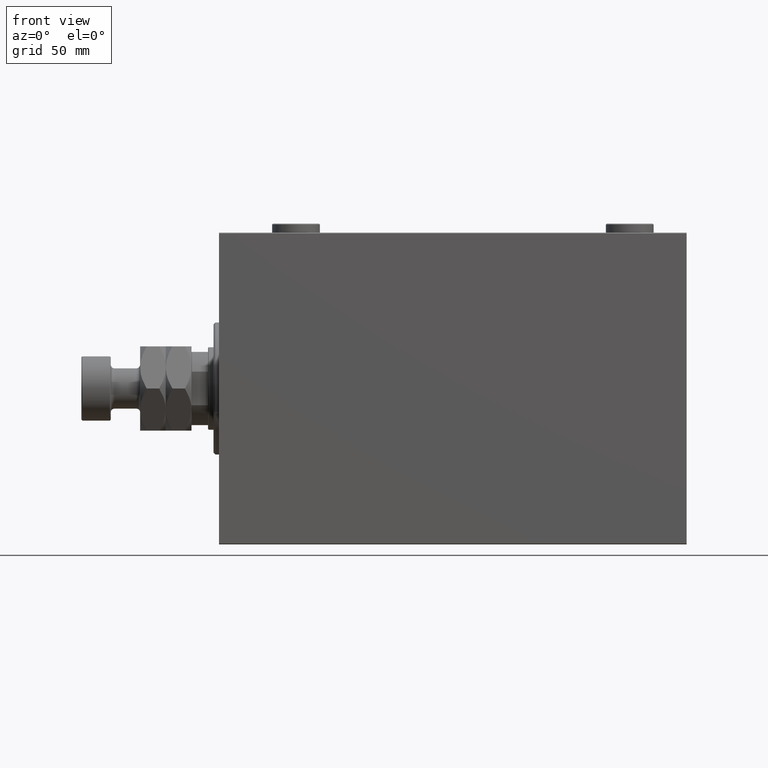
[diagram: clean part render]
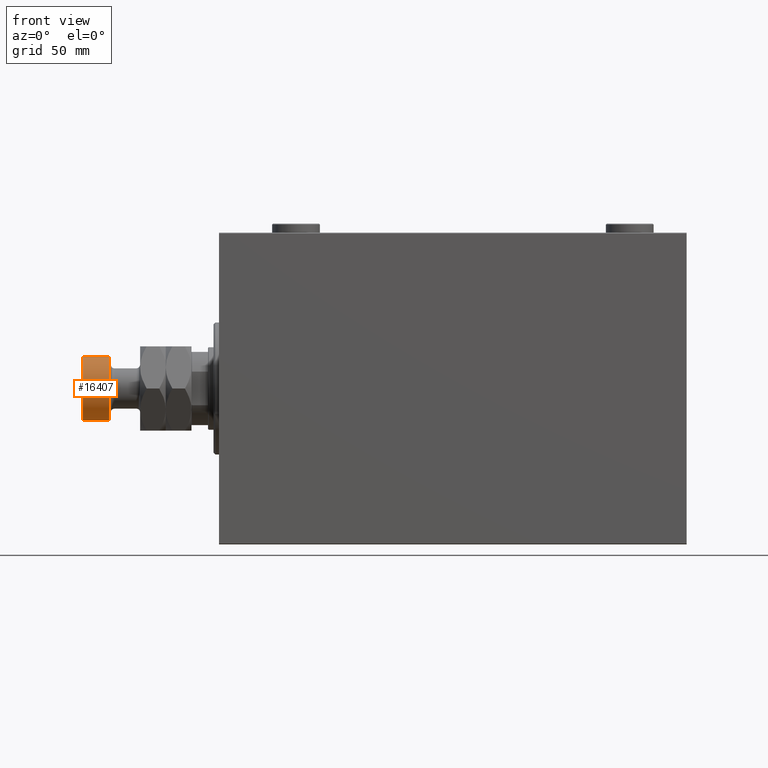
[diagram: same view with one face highlighted and labeled with its STEP entity id]
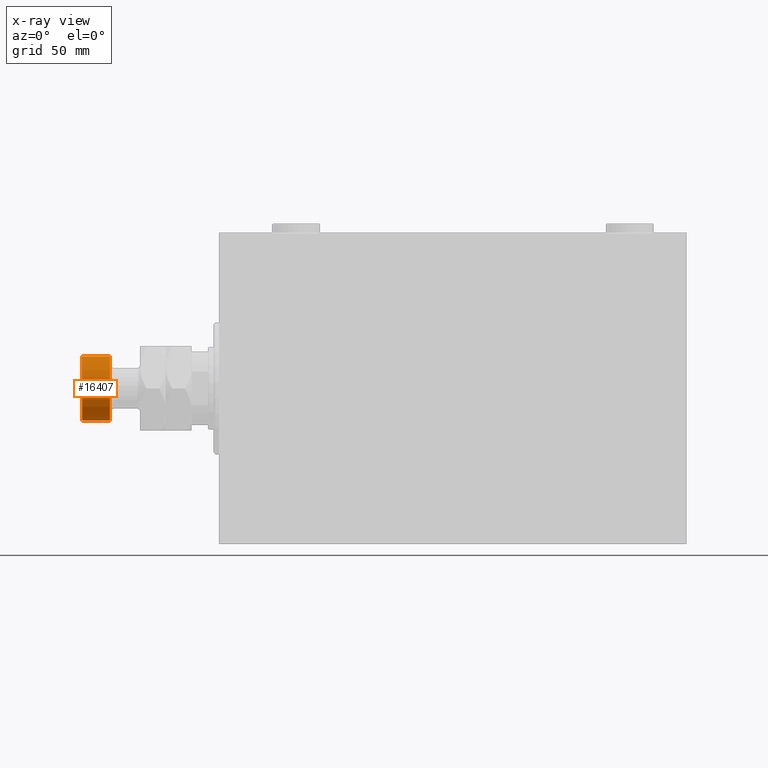
[diagram: x-ray of the same camera — body ghosted, the highlighted face saturated]
A machine part, front view. The second image highlights one B-rep face of the part: STEP entity #16407.
The next image is the same camera in x-ray: the body ghosted, the highlighted face saturated — about 0% of this face is hidden behind the body in this view.
In plain terms, the highlighted cylindrical surface (edge-blend (fillet) strip) has radius 17.5 mm, axis along (1, -0, -0).
Its self-contained STEP definition (entity closure, byte-faithful):
#992 = DIRECTION ( 'NONE',  ( -0.000000000000000000, -0.000000000000000000, 1.000000000000000000 ) ) ;
#5082 = AXIS2_PLACEMENT_3D ( 'NONE', #23829, #31449, #23356 ) ;
#5675 = CARTESIAN_POINT ( 'NONE',  ( -17.50000000000000355, 0.000000000000000000, 60.00000000000000000 ) ) ;
#6267 = CARTESIAN_POINT ( 'NONE',  ( -17.50000000000000355, 0.000000000000000000, 59.50000000000000000 ) ) ;
#8144 = DIRECTION ( 'NONE',  ( 1.000000000000000000, 0.000000000000000000, 0.000000000000000000 ) ) ;
#8763 = CARTESIAN_POINT ( 'NONE',  ( 17.50000000000000355, 2.143131898507868643E-15, 60.00000000000000000 ) ) ;
#9318 = VERTEX_POINT ( 'NONE', #6267 ) ;
#9461 = DIRECTION ( 'NONE',  ( -0.000000000000000000, -0.000000000000000000, -1.000000000000000000 ) ) ;
#9856 = CARTESIAN_POINT ( 'NONE',  ( 0.000000000000000000, 0.000000000000000000, 60.00000000000000000 ) ) ;
#11095 = EDGE_CURVE ( 'NONE', #18808, #46979, #44979, .T. ) ;
#13926 = CARTESIAN_POINT ( 'NONE',  ( 17.50000000000000355, 2.143131898507868643E-15, 44.50000000000000000 ) ) ;
#15309 = ORIENTED_EDGE ( 'NONE', *, *, #34501, .T. ) ;
#16407 = ADVANCED_FACE ( 'NONE', ( #46028 ), #42459, .T. ) ;
#17347 = ORIENTED_EDGE ( 'NONE', *, *, #25155, .T. ) ;
#18730 = ORIENTED_EDGE ( 'NONE', *, *, #11095, .T. ) ;
#18808 = VERTEX_POINT ( 'NONE', #30628 ) ;
#20195 = DIRECTION ( 'NONE',  ( -0.000000000000000000, -0.000000000000000000, -1.000000000000000000 ) ) ;
#21439 = AXIS2_PLACEMENT_3D ( 'NONE', #37167, #992, #8144 ) ;
#22780 = EDGE_CURVE ( 'NONE', #43106, #46979, #34916, .T. ) ;
#23356 = DIRECTION ( 'NONE',  ( 1.000000000000000000, 0.000000000000000000, 0.000000000000000000 ) ) ;
#23496 = VECTOR ( 'NONE', #20195, 1000.000000000000000 ) ;
#23829 = CARTESIAN_POINT ( 'NONE',  ( 0.000000000000000000, 0.000000000000000000, 59.50000000000000000 ) ) ;
#24356 = DIRECTION ( 'NONE',  ( -0.000000000000000000, -0.000000000000000000, -1.000000000000000000 ) ) ;
#24640 = AXIS2_PLACEMENT_3D ( 'NONE', #9856, #24356, #38884 ) ;
#25155 = EDGE_CURVE ( 'NONE', #43106, #9318, #25624, .T. ) ;
#25624 = CIRCLE ( 'NONE', #5082, 17.50000000000000355 ) ;
#30628 = CARTESIAN_POINT ( 'NONE',  ( -17.50000000000000355, 0.000000000000000000, 44.50000000000000000 ) ) ;
#30908 = VECTOR ( 'NONE', #9461, 1000.000000000000000 ) ;
#31449 = DIRECTION ( 'NONE',  ( 0.000000000000000000, 0.000000000000000000, -1.000000000000000000 ) ) ;
#34501 = EDGE_CURVE ( 'NONE', #9318, #18808, #44748, .T. ) ;
#34916 = LINE ( 'NONE', #8763, #30908 ) ;
#35931 = ORIENTED_EDGE ( 'NONE', *, *, #22780, .F. ) ;
#36802 = EDGE_LOOP ( 'NONE', ( #35931, #17347, #15309, #18730 ) ) ;
#37167 = CARTESIAN_POINT ( 'NONE',  ( 0.000000000000000000, 0.000000000000000000, 44.50000000000000000 ) ) ;
#37784 = CARTESIAN_POINT ( 'NONE',  ( 17.50000000000000355, 2.143131898507868643E-15, 59.50000000000000000 ) ) ;
#38884 = DIRECTION ( 'NONE',  ( -1.000000000000000000, 0.000000000000000000, 0.000000000000000000 ) ) ;
#42459 = CYLINDRICAL_SURFACE ( 'NONE', #24640, 17.50000000000000355 ) ;
#43106 = VERTEX_POINT ( 'NONE', #37784 ) ;
#44748 = LINE ( 'NONE', #5675, #23496 ) ;
#44979 = CIRCLE ( 'NONE', #21439, 17.50000000000000355 ) ;
#46028 = FACE_OUTER_BOUND ( 'NONE', #36802, .T. ) ;
#46979 = VERTEX_POINT ( 'NONE', #13926 ) ;